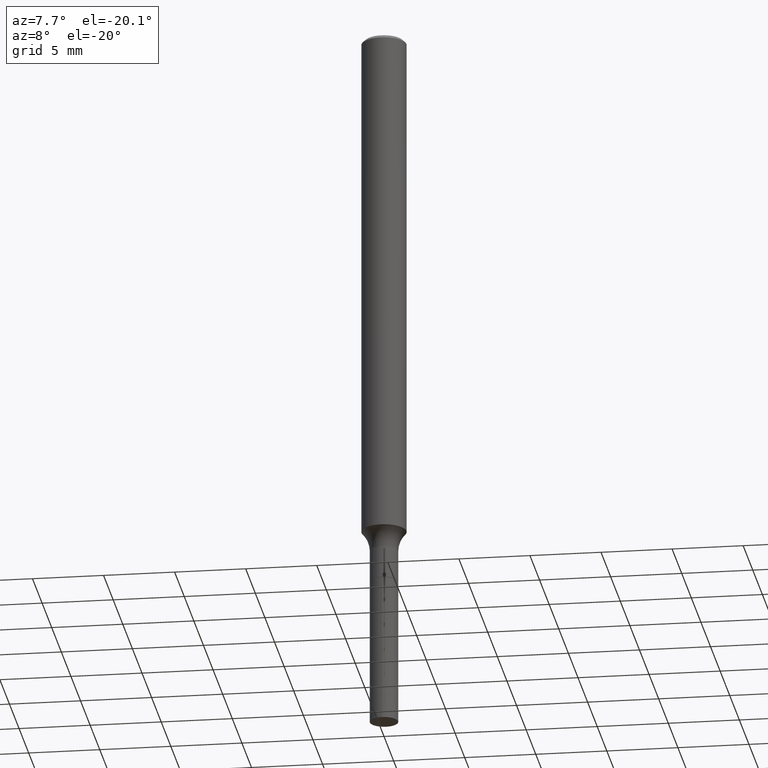
[diagram: clean part render]
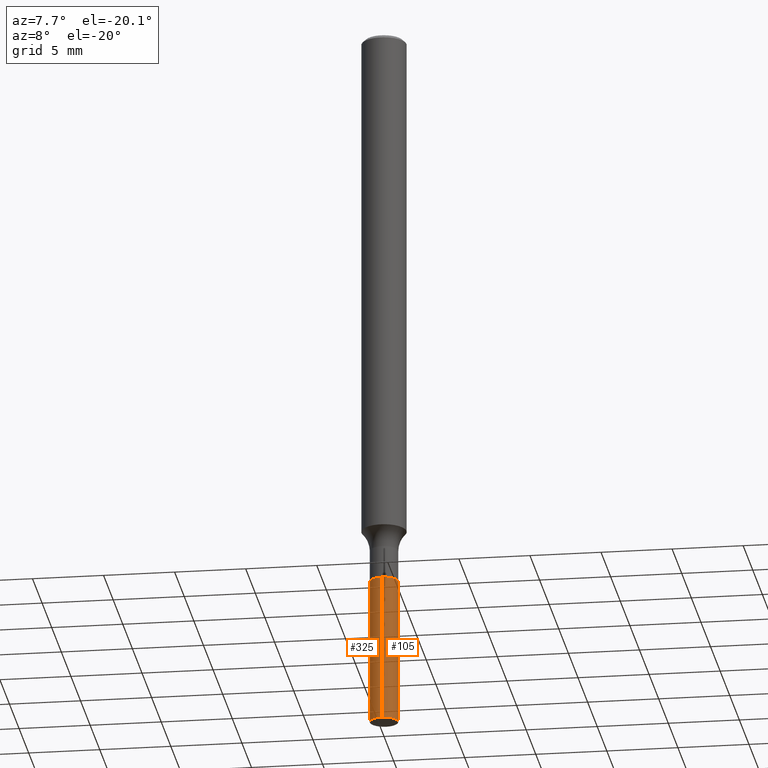
[diagram: same view with one multi-face feature highlighted, each face labeled with its STEP entity id]
A machine part, auxiliary view. The highlighted faces form ONE feature: a constant-radius fillet chain: 2 tangent blend faces with common blend radius 0.997 mm. The faces share edges in the B-rep.
Their STEP definitions:
[1] entity #325 (Cylinder):
#6 = DIRECTION ( 'NONE',  ( -6.982962677686264344E-15, -1.000000000000000000, 6.960122276851625723E-15 ) ) ;
#20 = DIRECTION ( 'NONE',  ( -6.982962677686264344E-15, -1.000000000000000000, 6.960122276851625723E-15 ) ) ;
#25 = CARTESIAN_POINT ( 'NONE',  ( 2.788880237858778304E-16, 0.03924999999999448375, -1.578500000000000458 ) ) ;
#28 = DIRECTION ( 'NONE',  ( -6.982962677686264344E-15, -1.000000000000000000, 6.960122276851625723E-15 ) ) ;
#49 = ORIENTED_EDGE ( 'NONE', *, *, #59, .F. ) ;
#59 = EDGE_CURVE ( 'NONE', #85, #313, #164, .T. ) ;
#65 = EDGE_CURVE ( 'NONE', #85, #470, #191, .T. ) ;
#85 = VERTEX_POINT ( 'NONE', #406 ) ;
#88 = VERTEX_POINT ( 'NONE', #364 ) ;
#102 = CARTESIAN_POINT ( 'NONE',  ( -2.740812850991374061E-16, -0.03925000000000695294, -1.987624522536499683 ) ) ;
#106 = VECTOR ( 'NONE', #321, 39.37007874015748143 ) ;
#139 = AXIS2_PLACEMENT_3D ( 'NONE', #360, #363, #28 ) ;
#141 = CIRCLE ( 'NONE', #422, 0.03925000000000000017 ) ;
#148 = ORIENTED_EDGE ( 'NONE', *, *, #65, .T. ) ;
#164 = LINE ( 'NONE', #25, #106 ) ;
#170 = DIRECTION ( 'NONE',  ( -2.445497786543332994E-29, 3.491439837320748932E-15, 1.000000000000000000 ) ) ;
#178 = EDGE_CURVE ( 'NONE', #313, #88, #141, .T. ) ;
#191 = CIRCLE ( 'NONE', #201, 0.03925000000000000017 ) ;
#199 = CARTESIAN_POINT ( 'NONE',  ( 3.860172510563238293E-29, -5.511303293363906070E-15, -1.578500000000000014 ) ) ;
#201 = AXIS2_PLACEMENT_3D ( 'NONE', #206, #170, #20 ) ;
#206 = CARTESIAN_POINT ( 'NONE',  ( 4.860685624846846103E-29, -6.939736949772670000E-15, -1.987624522536499683 ) ) ;
#210 = VECTOR ( 'NONE', #477, 39.37007874015748143 ) ;
#245 = CYLINDRICAL_SURFACE ( 'NONE', #139, 0.03925000000000000017 ) ;
#285 = FACE_OUTER_BOUND ( 'NONE', #492, .T. ) ;
#299 = EDGE_CURVE ( 'NONE', #470, #88, #323, .T. ) ;
#313 = VERTEX_POINT ( 'NONE', #432 ) ;
#321 = DIRECTION ( 'NONE',  ( -2.445497786543332994E-29, 3.491439837320748932E-15, 1.000000000000000000 ) ) ;
#323 = LINE ( 'NONE', #438, #210 ) ;
#325 = ADVANCED_FACE ( 'NONE', ( #285 ), #245, .T. ) ;
#360 = CARTESIAN_POINT ( 'NONE',  ( 3.860172510563238293E-29, -5.511303293363906070E-15, -1.578500000000000014 ) ) ;
#363 = DIRECTION ( 'NONE',  ( -2.445497786543332994E-29, 3.491439837320748932E-15, 1.000000000000000000 ) ) ;
#364 = CARTESIAN_POINT ( 'NONE',  ( -2.740812850991473162E-16, -0.03925000000000550965, -1.578499999999999792 ) ) ;
#392 = DIRECTION ( 'NONE',  ( -2.445497786543332994E-29, 3.491439837320748932E-15, 1.000000000000000000 ) ) ;
#406 = CARTESIAN_POINT ( 'NONE',  ( 2.788880237858879377E-16, 0.03924999999999306821, -1.987624522536499683 ) ) ;
#422 = AXIS2_PLACEMENT_3D ( 'NONE', #199, #392, #6 ) ;
#432 = CARTESIAN_POINT ( 'NONE',  ( 2.788880237858879377E-16, 0.03924999999999448375, -1.578500000000000458 ) ) ;
#438 = CARTESIAN_POINT ( 'NONE',  ( -2.740812850991473162E-16, -0.03925000000000550965, -1.578499999999999792 ) ) ;
#455 = ORIENTED_EDGE ( 'NONE', *, *, #299, .T. ) ;
#468 = ORIENTED_EDGE ( 'NONE', *, *, #178, .F. ) ;
#470 = VERTEX_POINT ( 'NONE', #102 ) ;
#477 = DIRECTION ( 'NONE',  ( -2.445497786543332994E-29, 3.491439837320748932E-15, 1.000000000000000000 ) ) ;
#492 = EDGE_LOOP ( 'NONE', ( #49, #148, #455, #468 ) ) ;
[2] entity #105 (Cylinder):
#4 = EDGE_LOOP ( 'NONE', ( #198, #55, #113, #190 ) ) ;
#25 = CARTESIAN_POINT ( 'NONE',  ( 2.788880237858778304E-16, 0.03924999999999448375, -1.578500000000000458 ) ) ;
#41 = DIRECTION ( 'NONE',  ( -2.445497786543332994E-29, 3.491439837320748932E-15, 1.000000000000000000 ) ) ;
#55 = ORIENTED_EDGE ( 'NONE', *, *, #59, .T. ) ;
#59 = EDGE_CURVE ( 'NONE', #85, #313, #164, .T. ) ;
#66 = CARTESIAN_POINT ( 'NONE',  ( 3.860172510563238293E-29, -5.511303293363906070E-15, -1.578500000000000014 ) ) ;
#85 = VERTEX_POINT ( 'NONE', #406 ) ;
#88 = VERTEX_POINT ( 'NONE', #364 ) ;
#102 = CARTESIAN_POINT ( 'NONE',  ( -2.740812850991374061E-16, -0.03925000000000695294, -1.987624522536499683 ) ) ;
#105 = ADVANCED_FACE ( 'NONE', ( #248 ), #402, .T. ) ;
#106 = VECTOR ( 'NONE', #321, 39.37007874015748143 ) ;
#113 = ORIENTED_EDGE ( 'NONE', *, *, #246, .F. ) ;
#120 = DIRECTION ( 'NONE',  ( -6.982962677686264344E-15, -1.000000000000000000, 6.960122276851625723E-15 ) ) ;
#125 = AXIS2_PLACEMENT_3D ( 'NONE', #66, #389, #228 ) ;
#140 = DIRECTION ( 'NONE',  ( -6.982962677686264344E-15, -1.000000000000000000, 6.960122276851625723E-15 ) ) ;
#153 = CIRCLE ( 'NONE', #259, 0.03925000000000000017 ) ;
#164 = LINE ( 'NONE', #25, #106 ) ;
#171 = CARTESIAN_POINT ( 'NONE',  ( 4.860685624846846103E-29, -6.939736949772670000E-15, -1.987624522536499683 ) ) ;
#190 = ORIENTED_EDGE ( 'NONE', *, *, #299, .F. ) ;
#198 = ORIENTED_EDGE ( 'NONE', *, *, #373, .T. ) ;
#210 = VECTOR ( 'NONE', #477, 39.37007874015748143 ) ;
#228 = DIRECTION ( 'NONE',  ( -6.982962677686264344E-15, -1.000000000000000000, 6.960122276851625723E-15 ) ) ;
#246 = EDGE_CURVE ( 'NONE', #88, #313, #153, .T. ) ;
#248 = FACE_OUTER_BOUND ( 'NONE', #4, .T. ) ;
#259 = AXIS2_PLACEMENT_3D ( 'NONE', #312, #41, #120 ) ;
#299 = EDGE_CURVE ( 'NONE', #470, #88, #323, .T. ) ;
#312 = CARTESIAN_POINT ( 'NONE',  ( 3.860172510563238293E-29, -5.511303293363906070E-15, -1.578500000000000014 ) ) ;
#313 = VERTEX_POINT ( 'NONE', #432 ) ;
#321 = DIRECTION ( 'NONE',  ( -2.445497786543332994E-29, 3.491439837320748932E-15, 1.000000000000000000 ) ) ;
#323 = LINE ( 'NONE', #438, #210 ) ;
#364 = CARTESIAN_POINT ( 'NONE',  ( -2.740812850991473162E-16, -0.03925000000000550965, -1.578499999999999792 ) ) ;
#368 = CIRCLE ( 'NONE', #420, 0.03925000000000000017 ) ;
#373 = EDGE_CURVE ( 'NONE', #470, #85, #368, .T. ) ;
#389 = DIRECTION ( 'NONE',  ( -2.445497786543332994E-29, 3.491439837320748932E-15, 1.000000000000000000 ) ) ;
#402 = CYLINDRICAL_SURFACE ( 'NONE', #125, 0.03925000000000000017 ) ;
#406 = CARTESIAN_POINT ( 'NONE',  ( 2.788880237858879377E-16, 0.03924999999999306821, -1.987624522536499683 ) ) ;
#420 = AXIS2_PLACEMENT_3D ( 'NONE', #171, #479, #140 ) ;
#432 = CARTESIAN_POINT ( 'NONE',  ( 2.788880237858879377E-16, 0.03924999999999448375, -1.578500000000000458 ) ) ;
#438 = CARTESIAN_POINT ( 'NONE',  ( -2.740812850991473162E-16, -0.03925000000000550965, -1.578499999999999792 ) ) ;
#470 = VERTEX_POINT ( 'NONE', #102 ) ;
#477 = DIRECTION ( 'NONE',  ( -2.445497786543332994E-29, 3.491439837320748932E-15, 1.000000000000000000 ) ) ;
#479 = DIRECTION ( 'NONE',  ( -2.445497786543332994E-29, 3.491439837320748932E-15, 1.000000000000000000 ) ) ;